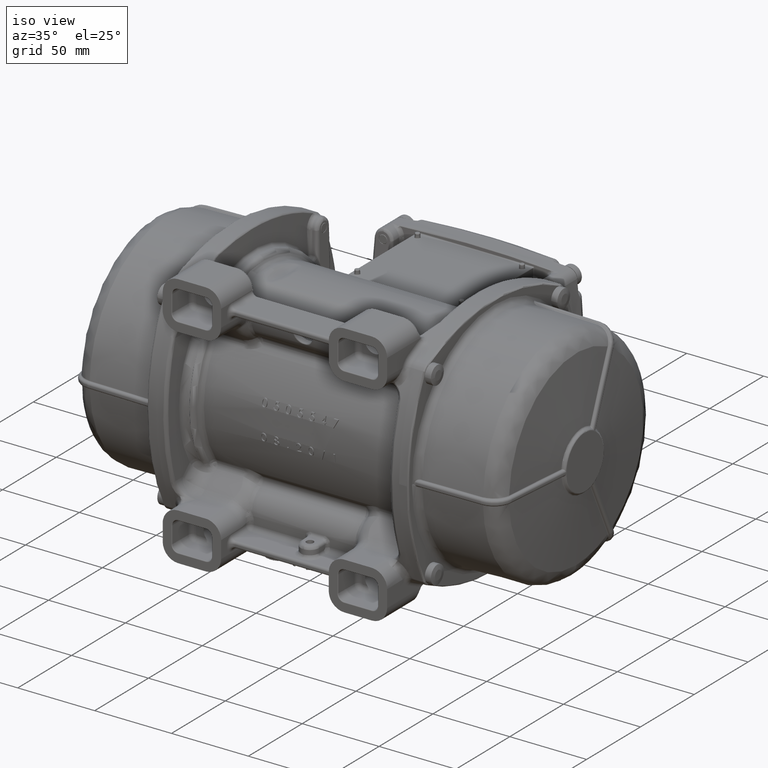
[diagram: clean part render]
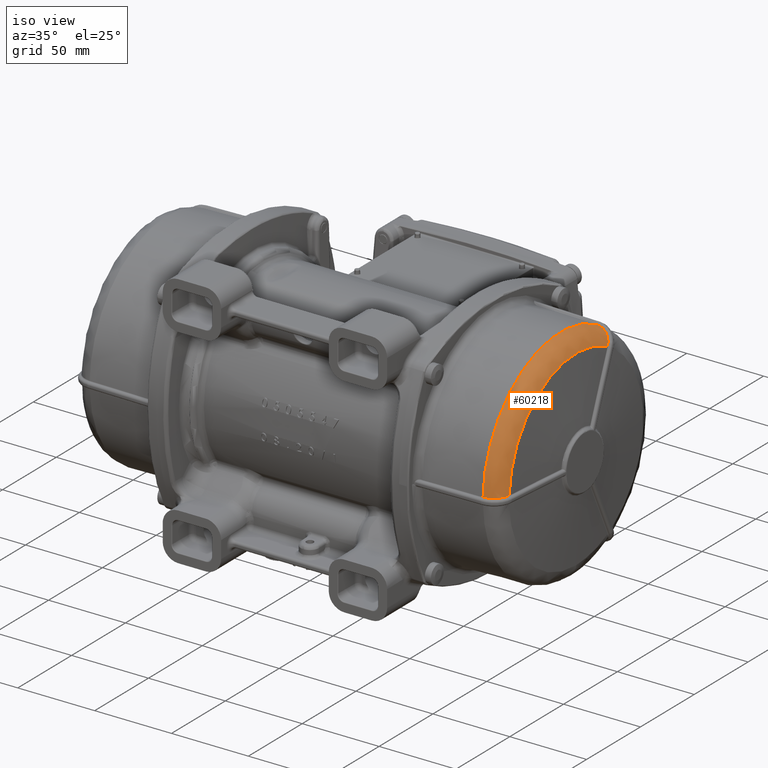
[diagram: same view with one face highlighted and labeled with its STEP entity id]
A machine part, iso view. The second image highlights one B-rep face of the part: STEP entity #60218.
In plain terms, the highlighted face is a freeform B-spline surface patch.
Its self-contained STEP definition (entity closure, byte-faithful):
#7948 = CARTESIAN_POINT ( 'NONE',  ( 127.9224025775802147, -18.30853579996159652, 92.15202563683557457 ) ) ;
#8379 = VERTEX_POINT ( 'NONE', #65660 ) ;
#8578 = CARTESIAN_POINT ( 'NONE',  ( 137.7066192468192583, -66.76897034452058222, 58.52813498128784886 ) ) ;
#9113 = CARTESIAN_POINT ( 'NONE',  ( 134.2691957399337070, -69.61625438212449524, 2.381930257516482019 ) ) ;
#9236 = EDGE_CURVE ( 'NONE', #28421, #58421, #20619, .T. ) ;
#10403 = CARTESIAN_POINT ( 'NONE',  ( 129.1464526018733636, -71.81789705418522374, 2.379477505993535580 ) ) ;
#12222 = CARTESIAN_POINT ( 'NONE',  ( 137.7066192468190593, -17.30236655766139720, 87.08769199352821033 ) ) ;
#13830 = AXIS2_PLACEMENT_3D ( 'NONE', #28630, #29233, #67643 ) ;
#13932 = CARTESIAN_POINT ( 'NONE',  ( 137.2833671830052253, 30.83910958021799331, 58.19144543259920255 ) ) ;
#15349 = CARTESIAN_POINT ( 'NONE',  ( 127.8287385603464088, -71.91725298040130099, 1.504208915725119944 ) ) ;
#17975 = CARTESIAN_POINT ( 'NONE',  ( 138.1953040436363835, 29.10186848194635090, 55.18862942949299821 ) ) ;
#18181 = CARTESIAN_POINT ( 'NONE',  ( 138.1953040436347919, -62.34568932695919585, 2.391357312301194860 ) ) ;
#18193 = FACE_OUTER_BOUND ( 'NONE', #87625, .T. ) ;
#18722 = CARTESIAN_POINT ( 'NONE',  ( 134.6726930525671264, -69.27790031380972380, 2.382261273610732921 ) ) ;
#19739 = ORIENTED_EDGE ( 'NONE', *, *, #104461, .T. ) ;
#20619 = B_SPLINE_CURVE_WITH_KNOTS ( 'NONE', 3,
 ( #79266, #83643, #52843, #53470, #13932, #83020, #43224, #93342, #64400, #122261, #120997, #35545, #33059, #63141, #43880, #112589, #34319, #103587, #25379, #24147, #122890, #72154, #93978, #73414, #24747, #113204, #92694, #44503 ),
 .UNSPECIFIED., .F., .F.,
 ( 4, 2, 2, 2, 2, 2, 1, 1, 1, 1, 2, 2, 2, 2, 2, 4 ),
 ( 0.000000000000000000, 0.1250000000000560663, 0.2500000000001121325, 0.3750000000001681988, 0.4375000000001960099, 0.4687500000002071121, 0.4843750000002102762, 0.4921875000002118306, 0.4960937500002128298, 0.4980468750002130518, 0.4990234375002157718, 0.5000000000002184919, 0.6250000000001638689, 0.7500000000001092459, 0.8750000000000546230, 1.000000000000000000 ),
 .UNSPECIFIED. ) ;
#21848 = CARTESIAN_POINT ( 'NONE',  ( 138.1269389955675138, -63.09199576150907518, 2.390285191146870325 ) ) ;
#22413 = CARTESIAN_POINT ( 'NONE',  ( 127.9220567947570117, -71.89199496896381447, 2.379210573149729946 ) ) ;
#22423 = CARTESIAN_POINT ( 'NONE',  ( 127.8287385603464088, -18.30895193057665793, 92.15412013961437765 ) ) ;
#24147 = CARTESIAN_POINT ( 'NONE',  ( 134.4160834531460296, 32.69789688965347807, 61.39833037834514329 ) ) ;
#24747 = CARTESIAN_POINT ( 'NONE',  ( 130.3870154978182541, 33.72562509987249513, 63.17461941308044970 ) ) ;
#24796 = ORIENTED_EDGE ( 'NONE', *, *, #24962, .F. ) ;
#24962 = EDGE_CURVE ( 'NONE', #79916, #58421, #47453, .T. ) ;
#25379 = CARTESIAN_POINT ( 'NONE',  ( 134.8927194516969053, 32.47570040878732556, 61.01454568579221416 ) ) ;
#28273 = CARTESIAN_POINT ( 'NONE',  ( 130.3840770894660466, -71.57435358877810927, 2.380058955864061687 ) ) ;
#28421 = VERTEX_POINT ( 'NONE', #17975 ) ;
#28630 = CARTESIAN_POINT ( 'NONE',  ( 138.1991966399519640, 4.163336342344334502E-14, 9.215718466126789267E-15 ) ) ;
#29233 = DIRECTION ( 'NONE',  ( -1.000000000000000000, -8.903425684545620445E-16, 5.488998557067860730E-16 ) ) ;
#30162 = CARTESIAN_POINT ( 'NONE',  ( 128.5272336477782176, -71.88142539080386939, 2.379222472878526062 ) ) ;
#33059 = CARTESIAN_POINT ( 'NONE',  ( 135.0437278770945682, 32.40401928114581409, 60.89078429974664175 ) ) ;
#33413 = B_SPLINE_CURVE_WITH_KNOTS ( 'NONE', 3,
 ( #34631, #85221, #56340, #105189 ),
 .UNSPECIFIED., .F., .F.,
 ( 4, 4 ),
 ( 0.000000000000000000, 1.000000000000000000 ),
 .UNSPECIFIED. ) ;
#33863 = CARTESIAN_POINT ( 'NONE',  ( 127.8755705689631981, -71.91643570339850555, 1.504191821699649934 ) ) ;
#33945 = B_SPLINE_CURVE_WITH_KNOTS ( 'NONE', 3,
 ( #106486, #30162, #10403, #28273, #49941, #39681, #78854, #98765, #67291, #9113, #126452, #40310, #18722, #107129, #57647, #96845, #58305, #116767, #71728, #41545, #42816, #109683, #62729, #89724, #119301, #81980, #21848, #121216 ),
 .UNSPECIFIED., .F., .F.,
 ( 4, 2, 2, 2, 2, 2, 1, 1, 1, 1, 2, 2, 2, 2, 2, 4 ),
 ( 0.000000000000000000, 0.1250000000001479095, 0.2500000000002958189, 0.3750000000004437561, 0.4375000000005169754, 0.4687500000005515033, 0.4843750000005687673, 0.4921875000005773715, 0.4960937500005788148, 0.4980468750005804246, 0.4990234375005792589, 0.5000000000005780931, 0.6250000000004335421, 0.7500000000002889911, 0.8750000000001445510, 1.000000000000000000 ),
 .UNSPECIFIED. ) ;
#34319 = CARTESIAN_POINT ( 'NONE',  ( 134.9000344277141323, 32.47228329850653239, 61.00864382756578408 ) ) ;
#34551 = CARTESIAN_POINT ( 'NONE',  ( 138.1991966399523903, -62.30220196386049736, 2.391427741431279674 ) ) ;
#34631 = CARTESIAN_POINT ( 'NONE',  ( 138.1991966399519640, 29.08006380643279698, 55.15100348318710388 ) ) ;
#35545 = CARTESIAN_POINT ( 'NONE',  ( 135.1104952738584188, 32.37119920880784463, 60.83415522907206707 ) ) ;
#37250 = ORIENTED_EDGE ( 'NONE', *, *, #9236, .T. ) ;
#37251 = CARTESIAN_POINT ( 'NONE',  ( 127.8755705689631981, 34.65554952194135296, 63.03355617962390056 ) ) ;
#39681 = CARTESIAN_POINT ( 'NONE',  ( 132.2048032318507751, -70.91801493181169747, 2.380935719266251915 ) ) ;
#40310 = CARTESIAN_POINT ( 'NONE',  ( 134.5809516914965798, -69.35736969566634968, 2.382178652357335391 ) ) ;
#40405 = ORIENTED_EDGE ( 'NONE', *, *, #80930, .T. ) ;
#40869 = CARTESIAN_POINT ( 'NONE',  ( 137.7066192468190877, -67.96340268985458977, 1.421510861892294919 ) ) ;
#41501 = CARTESIAN_POINT ( 'NONE',  ( 133.5732335576558114, -71.81700437281897109, 1.502112133060810928 ) ) ;
#41545 = CARTESIAN_POINT ( 'NONE',  ( 135.2348852361324703, -68.76024132458995552, 2.382874384634546594 ) ) ;
#42816 = CARTESIAN_POINT ( 'NONE',  ( 135.6003543461567915, -68.37561620353778835, 2.383793517721018329 ) ) ;
#43224 = CARTESIAN_POINT ( 'NONE',  ( 136.3170247947819576, 31.67055066799472129, 59.62645019346479813 ) ) ;
#43880 = CARTESIAN_POINT ( 'NONE',  ( 134.9275865304090303, 32.45936708793792747, 60.98633739317290292 ) ) ;
#44503 = CARTESIAN_POINT ( 'NONE',  ( 127.9220568754313945, 33.88554068642515205, 63.44989925724821234 ) ) ;
#44960 = EDGE_CURVE ( 'NONE', #82207, #8379, #112062, .T. ) ;
#46696 = EDGE_CURVE ( 'NONE', #79916, #118216, #33945, .T. ) ;
#46890 = CARTESIAN_POINT ( 'NONE',  ( 127.8755705689633970, -18.30874386526914321, 92.15307288822498322 ) ) ;
#47453 = CIRCLE ( 'NONE', #119273, 71.93135327219211206 ) ;
#47503 = CARTESIAN_POINT ( 'NONE',  ( 127.9224025775802147, -70.65172731171496423, 61.93166992728002640 ) ) ;
#49941 = CARTESIAN_POINT ( 'NONE',  ( 131.0023194106730955, -71.39426871149993303, 2.380383008402154221 ) ) ;
#50953 = CARTESIAN_POINT ( 'NONE',  ( 138.1979302082712024, -62.31668890280649720, 2.391404325058015257 ) ) ;
#51125 = CARTESIAN_POINT ( 'NONE',  ( 133.5732335576558114, 34.60763491984471329, 62.94640627709038938 ) ) ;
#51564 = CARTESIAN_POINT ( 'NONE',  ( 138.1953040436347919, -62.34568932695919585, 2.391357312301194860 ) ) ;
#52843 = CARTESIAN_POINT ( 'NONE',  ( 137.9789753654594620, 29.83933026113199460, 56.46289569587612078 ) ) ;
#53470 = CARTESIAN_POINT ( 'NONE',  ( 137.5568731146952359, 30.52120365067597163, 57.64192141682424619 ) ) ;
#53495 = B_SPLINE_CURVE_WITH_KNOTS ( 'NONE', 3,
 ( #51564, #99168, #50953, #70858 ),
 .UNSPECIFIED., .F., .F.,
 ( 4, 4 ),
 ( 0.000000000000000000, 1.000000000000000000 ),
 .UNSPECIFIED. ) ;
#56147 = CARTESIAN_POINT ( 'NONE',  ( 127.9220568754313945, 33.88554068642515205, 63.44989925724821234 ) ) ;
#56340 = CARTESIAN_POINT ( 'NONE',  ( 138.1966327192301947, 29.09459580732500328, 55.17607986512960139 ) ) ;
#56482 = CARTESIAN_POINT ( 'NONE',  ( 133.5732335576556409, -18.28343028088524136, 92.02566247689600232 ) ) ;
#57647 = CARTESIAN_POINT ( 'NONE',  ( 134.8301004930480929, -69.13588557810881241, 2.382422191375531018 ) ) ;
#58305 = CARTESIAN_POINT ( 'NONE',  ( 134.8671742766007071, -69.10170805458369614, 2.382462747176928630 ) ) ;
#58421 = VERTEX_POINT ( 'NONE', #56147 ) ;
#60218 = ADVANCED_FACE ( 'NONE', ( #18193 ), #123973, .T. ) ;
#61385 = CARTESIAN_POINT ( 'NONE',  ( 127.7819065517295769, -71.91807025740421011, 1.504226009750594839 ) ) ;
#62686 = CARTESIAN_POINT ( 'NONE',  ( 127.7819065517295911, -18.30915999588422949, 92.15516739100377208 ) ) ;
#62729 = CARTESIAN_POINT ( 'NONE',  ( 136.6599486771359295, -66.96670778697369997, 2.386714171479602076 ) ) ;
#63141 = CARTESIAN_POINT ( 'NONE',  ( 134.9662266452214681, 32.44111508235803143, 60.95482121512457496 ) ) ;
#64400 = CARTESIAN_POINT ( 'NONE',  ( 135.6035278694259603, 32.11231217603059207, 60.38778333855666602 ) ) ;
#65660 = CARTESIAN_POINT ( 'NONE',  ( 138.1991966399519640, 29.08006380643279698, 55.15100348318710388 ) ) ;
#67291 = CARTESIAN_POINT ( 'NONE',  ( 133.8829369443131725, -69.91350879038773769, 2.381678506530995332 ) ) ;
#67643 = DIRECTION ( 'NONE',  ( 8.903425684545622417E-16, -1.000000000000000000, 0.000000000000000000 ) ) ;
#68015 = CARTESIAN_POINT ( 'NONE',  ( 138.1991966399519640, 30.03812054665045039, 54.63510419330790313 ) ) ;
#70858 = CARTESIAN_POINT ( 'NONE',  ( 138.1991966399523903, -62.30220196386049736, 2.391427741431279674 ) ) ;
#71678 = CARTESIAN_POINT ( 'NONE',  ( 127.7819065517297332, -70.65413605267571029, 61.93378137389003513 ) ) ;
#71728 = CARTESIAN_POINT ( 'NONE',  ( 134.8792044690638079, -69.09056043819909121, 2.382476123249164246 ) ) ;
#72154 = CARTESIAN_POINT ( 'NONE',  ( 132.7944513632273811, 33.24726898932929231, 62.34829548516844255 ) ) ;
#72324 = CARTESIAN_POINT ( 'NONE',  ( 127.7819065517293780, 34.65633719122354961, 63.03498883894209825 ) ) ;
#73414 = CARTESIAN_POINT ( 'NONE',  ( 131.0059929340799556, 33.63508596932393857, 63.01845082505953854 ) ) ;
#78854 = CARTESIAN_POINT ( 'NONE',  ( 132.7888511286574555, -70.62185144983097018, 2.381163479206822142 ) ) ;
#79266 = CARTESIAN_POINT ( 'NONE',  ( 138.1953040436363835, 29.10186848194635090, 55.18862942949299821 ) ) ;
#79916 = VERTEX_POINT ( 'NONE', #22413 ) ;
#80930 = EDGE_CURVE ( 'NONE', #8379, #28421, #33413, .T. ) ;
#81980 = CARTESIAN_POINT ( 'NONE',  ( 137.9786132453594121, -63.81975913707042736, 2.389829326926907083 ) ) ;
#82095 = CARTESIAN_POINT ( 'NONE',  ( 127.9220567947572107, 2.636164979342234875E-14, 1.387778780781451829E-14 ) ) ;
#82207 = VERTEX_POINT ( 'NONE', #34551 ) ;
#83020 = CARTESIAN_POINT ( 'NONE',  ( 136.6631864605916462, 31.41375530295943719, 59.18365156133887695 ) ) ;
#83643 = CARTESIAN_POINT ( 'NONE',  ( 138.1270208605953655, 29.47550223208546782, 55.83364039363830500 ) ) ;
#85221 = CARTESIAN_POINT ( 'NONE',  ( 138.1979302082721972, 29.08732755547930182, 55.16353783192050031 ) ) ;
#85994 = CARTESIAN_POINT ( 'NONE',  ( 127.8755705689633970, -70.65253022536846572, 61.93237374281669361 ) ) ;
#86627 = CARTESIAN_POINT ( 'NONE',  ( 127.9224025775802005, -71.91561842639571012, 1.504174727674179923 ) ) ;
#87625 = EDGE_LOOP ( 'NONE', ( #24796, #99716, #19739, #90453, #40405, #37250 ) ) ;
#89678 = CARTESIAN_POINT ( 'NONE',  ( 137.7066192468190877, 32.75063682677190968, 59.56878868799254434 ) ) ;
#89724 = CARTESIAN_POINT ( 'NONE',  ( 137.2815103332497984, -65.81895330137076883, 2.388270800862910548 ) ) ;
#90318 = CARTESIAN_POINT ( 'NONE',  ( 133.5732335576556409, -70.55484636464288428, 61.84674633001488786 ) ) ;
#90453 = ORIENTED_EDGE ( 'NONE', *, *, #44960, .T. ) ;
#92694 = CARTESIAN_POINT ( 'NONE',  ( 128.5279377495437245, 33.88023943197392640, 63.44074104223739141 ) ) ;
#93342 = CARTESIAN_POINT ( 'NONE',  ( 135.7836925717650445, 32.00779730835818526, 60.20769358310373320 ) ) ;
#93978 = CARTESIAN_POINT ( 'NONE',  ( 132.2098082728096529, 33.39590613790632290, 62.60528668746034953 ) ) ;
#95719 = CARTESIAN_POINT ( 'NONE',  ( 127.9224025775800015, 34.65515568730025109, 63.03283984996480172 ) ) ;
#96845 = CARTESIAN_POINT ( 'NONE',  ( 134.8560693512943658, -69.11197655935720263, 2.382450482265099367 ) ) ;
#98765 = CARTESIAN_POINT ( 'NONE',  ( 133.6155628588455215, -70.10019796119827618, 2.381543101978819355 ) ) ;
#99168 = CARTESIAN_POINT ( 'NONE',  ( 138.1966327192280062, -62.33118474810340359, 2.391380851266554863 ) ) ;
#99716 = ORIENTED_EDGE ( 'NONE', *, *, #46696, .T. ) ;
#99990 = CARTESIAN_POINT ( 'NONE',  ( 138.1991966399519640, -62.33444844313950028, 1.303776621314100215 ) ) ;
#100628 = CARTESIAN_POINT ( 'NONE',  ( 127.8287385603465367, -70.65333313902206669, 61.93307755835335371 ) ) ;
#103587 = CARTESIAN_POINT ( 'NONE',  ( 134.8945284301007348, 32.47485569994997689, 61.01308673479189082 ) ) ;
#104461 = EDGE_CURVE ( 'NONE', #118216, #82207, #53495, .T. ) ;
#105189 = CARTESIAN_POINT ( 'NONE',  ( 138.1953040436363835, 29.10186848194635090, 55.18862942949299821 ) ) ;
#106486 = CARTESIAN_POINT ( 'NONE',  ( 127.9220567947570117, -71.89199496896381447, 2.379210573149729946 ) ) ;
#107129 = CARTESIAN_POINT ( 'NONE',  ( 134.7779341044109174, -69.18349922549323594, 2.382366896094140429 ) ) ;
#107241 = CARTESIAN_POINT ( 'NONE',  ( 138.1991966399521630, -15.86932721798296519, 79.87480072731804626 ) ) ;
#109683 = CARTESIAN_POINT ( 'NONE',  ( 136.3130145708976499, -67.47901865439757785, 2.385720293239262713 ) ) ;
#110253 = CARTESIAN_POINT ( 'NONE',  ( 127.8287385603464088, 34.65594335658244773, 63.03427250928300651 ) ) ;
#112062 = CIRCLE ( 'NONE', #13830, 62.34808173623879668 ) ;
#112589 = CARTESIAN_POINT ( 'NONE',  ( 134.9082955819500569, 32.46841945502169580, 61.00197058157929320 ) ) ;
#113204 = CARTESIAN_POINT ( 'NONE',  ( 129.1479058275586738, 33.84818528447708985, 63.38573347819026793 ) ) ;
#116767 = CARTESIAN_POINT ( 'NONE',  ( 134.8745720873679943, -69.09485755717258826, 2.382470955218960462 ) ) ;
#118216 = VERTEX_POINT ( 'NONE', #18181 ) ;
#119273 = AXIS2_PLACEMENT_3D ( 'NONE', #82095, #121340, #121968 ) ;
#119301 = CARTESIAN_POINT ( 'NONE',  ( 137.5556222136585518, -65.18338036739746144, 2.388823370475331664 ) ) ;
#120997 = CARTESIAN_POINT ( 'NONE',  ( 135.2443661625640345, 32.30417124564278453, 60.71853097283588596 ) ) ;
#121216 = CARTESIAN_POINT ( 'NONE',  ( 138.1953040436347919, -62.34568932695919585, 2.391357312301194860 ) ) ;
#121340 = DIRECTION ( 'NONE',  ( -1.000000000000000000, 4.630343963183950190E-15, -1.643753512620105162E-30 ) ) ;
#121968 = DIRECTION ( 'NONE',  ( -4.630343963183951768E-15, -1.000000000000000000, 0.000000000000000000 ) ) ;
#122261 = CARTESIAN_POINT ( 'NONE',  ( 135.3340632291373993, 32.25763479387236288, 60.63829201681222969 ) ) ;
#122890 = CARTESIAN_POINT ( 'NONE',  ( 133.8976718758639208, 32.89823748833918415, 61.74476895416587041 ) ) ;
#123973 =( BOUNDED_SURFACE ( )  B_SPLINE_SURFACE ( 3, 3, ( 
 ( #68015, #107241, #125285, #99990 ),
 ( #89678, #12222, #8578, #40869 ),
 ( #51125, #56482, #90318, #41501 ),
 ( #95719, #7948, #47503, #86627 ),
 ( #37251, #46890, #85994, #33863 ),
 ( #110253, #22423, #100628, #15349 ),
 ( #72324, #62686, #71678, #61385 ) ),
 .UNSPECIFIED., .F., .F., .F. ) 
 B_SPLINE_SURFACE_WITH_KNOTS ( ( 4, 3, 4 ),
 ( 4, 4 ),
 ( 0.000000000000000000, 1.000000000000000000, 1.010000000000000009 ),
 ( 0.000000000000000000, 1.000000000000000000 ),
 .UNSPECIFIED. ) 
 GEOMETRIC_REPRESENTATION_ITEM ( )  RATIONAL_B_SPLINE_SURFACE ( (
 ( 1.000000000000000000, 0.6786668971695279939, 0.6786668971695279939, 1.000000000000000000),
 ( 0.8287632169849280528, 0.5624541609593980418, 0.5624541609593980418, 0.8287632169849280528),
 ( 0.8287632169849280528, 0.5624541609593980418, 0.5624541609593980418, 0.8287632169849280528),
 ( 1.000000000000000000, 0.6786668971695279939, 0.6786668971695279939, 1.000000000000000000),
 ( 1.000000000000000000, 0.6786668971695279939, 0.6786668971695279939, 1.000000000000000000),
 ( 1.000000000000000000, 0.6786668971695279939, 0.6786668971695279939, 1.000000000000000000),
 ( 1.000000000000000000, 0.6786668971695279939, 0.6786668971695279939, 1.000000000000000000) ) ) 
 REPRESENTATION_ITEM ( '' )  SURFACE ( )  );
#125285 = CARTESIAN_POINT ( 'NONE',  ( 138.1991966399521630, -61.23894294308674802, 53.68064087539889329 ) ) ;
#126452 = CARTESIAN_POINT ( 'NONE',  ( 134.3954855591568673, -69.51430437876832968, 2.382022423344265061 ) ) ;